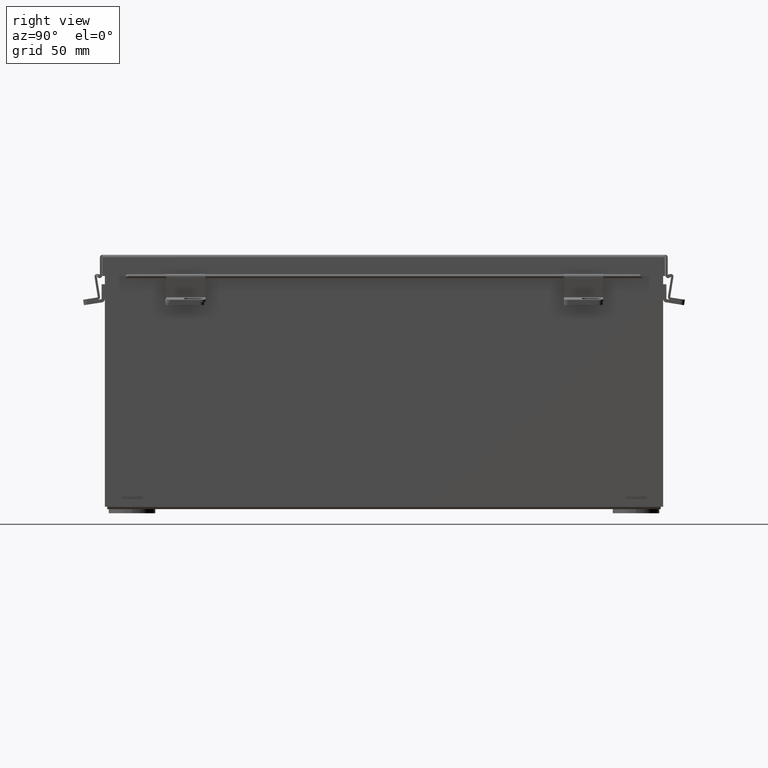
[diagram: clean part render]
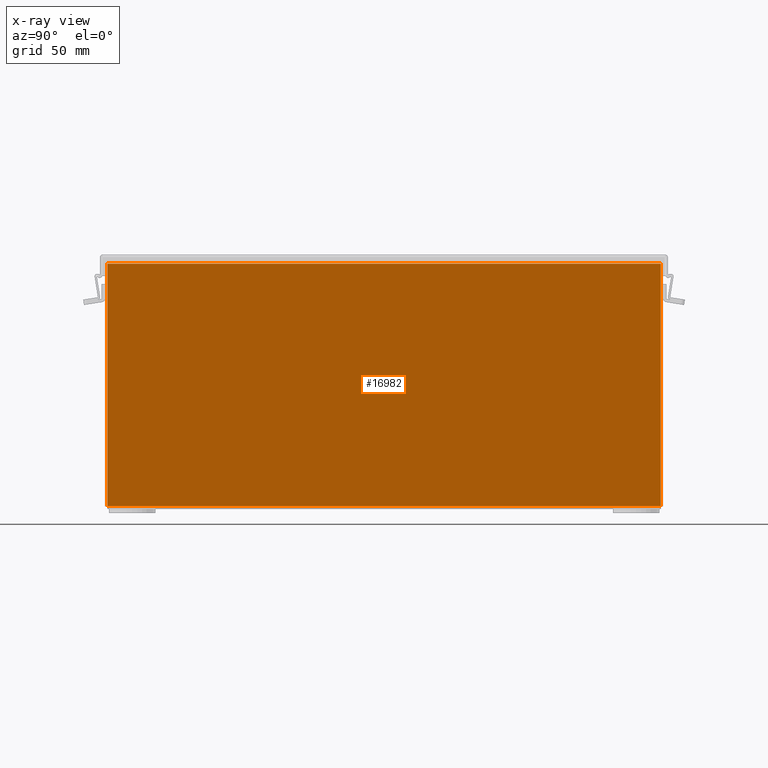
[diagram: x-ray — body ghosted, one internal face saturated and labeled with its STEP entity id]
A machine part, right view, then the same camera in x-ray: the body is ghosted and one INTERNAL B-rep face — a face not visible from any outside direction — is saturated and labeled: STEP entity #16982.
In plain terms, the highlighted planar face has unit normal (-1, 0, 0).
Its self-contained STEP definition (entity closure, byte-faithful):
#799 = LINE ( 'NONE', #16901, #12255 ) ;
#940 = ORIENTED_EDGE ( 'NONE', *, *, #8664, .F. ) ;
#1214 = VERTEX_POINT ( 'NONE', #6431 ) ;
#1230 = VERTEX_POINT ( 'NONE', #18881 ) ;
#1241 = VECTOR ( 'NONE', #15335, 39.37007874015748100 ) ;
#1297 = VECTOR ( 'NONE', #16380, 39.37007874015748100 ) ;
#1596 = PLANE ( 'NONE',  #2156 ) ;
#2156 = AXIS2_PLACEMENT_3D ( 'NONE', #14991, #6080, #16459 ) ;
#2313 = LINE ( 'NONE', #7076, #9793 ) ;
#3618 = DIRECTION ( 'NONE',  ( -0.0000000000000000000, -1.000000000000000000, -0.0000000000000000000 ) ) ;
#4725 = LINE ( 'NONE', #6424, #1241 ) ;
#5277 = EDGE_CURVE ( 'NONE', #14692, #1230, #2313, .T. ) ;
#5654 = VERTEX_POINT ( 'NONE', #9638 ) ;
#6080 = DIRECTION ( 'NONE',  ( -1.000000000000000000, 0.0000000000000000000, 3.479795166820706300E-015 ) ) ;
#6424 = CARTESIAN_POINT ( 'NONE',  ( 3.925300000000000500, -8.925300000000001800, 0.01300000000000011600 ) ) ;
#6431 = CARTESIAN_POINT ( 'NONE',  ( 3.925300000000000500, -8.925300000000001800, 0.01300000000000011600 ) ) ;
#6493 = DIRECTION ( 'NONE',  ( 3.479795166820706300E-015, -1.391918066728282600E-016, 1.000000000000000000 ) ) ;
#7035 = CARTESIAN_POINT ( 'NONE',  ( 3.925300000000000500, 8.925299999999998200, 0.01300000000000011600 ) ) ;
#7076 = CARTESIAN_POINT ( 'NONE',  ( 3.925300000000027500, 8.925299999999998200, 7.850599999999999100 ) ) ;
#8664 = EDGE_CURVE ( 'NONE', #1230, #5654, #799, .T. ) ;
#9150 = EDGE_CURVE ( 'NONE', #1214, #14692, #4725, .T. ) ;
#9638 = CARTESIAN_POINT ( 'NONE',  ( 3.925300000000027100, -8.925300000000000000, 7.837599999999999200 ) ) ;
#9793 = VECTOR ( 'NONE', #6493, 39.37007874015748100 ) ;
#12255 = VECTOR ( 'NONE', #3618, 39.37007874015748100 ) ;
#13208 = LINE ( 'NONE', #14904, #1297 ) ;
#14212 = EDGE_LOOP ( 'NONE', ( #18340, #940, #18101, #16050 ) ) ;
#14692 = VERTEX_POINT ( 'NONE', #7035 ) ;
#14904 = CARTESIAN_POINT ( 'NONE',  ( 3.925300000000000500, -8.925300000000001800, 0.0000000000000000000 ) ) ;
#14991 = CARTESIAN_POINT ( 'NONE',  ( 3.925300000000000500, 0.0000000000000000000, -1.391535071772734100E-014 ) ) ;
#15034 = FACE_OUTER_BOUND ( 'NONE', #14212, .T. ) ;
#15335 = DIRECTION ( 'NONE',  ( 0.0000000000000000000, 1.000000000000000000, 0.0000000000000000000 ) ) ;
#16050 = ORIENTED_EDGE ( 'NONE', *, *, #9150, .F. ) ;
#16380 = DIRECTION ( 'NONE',  ( -3.479795166820706300E-015, -0.0000000000000000000, -1.000000000000000000 ) ) ;
#16459 = DIRECTION ( 'NONE',  ( 3.479795166820706300E-015, 0.0000000000000000000, 1.000000000000000000 ) ) ;
#16901 = CARTESIAN_POINT ( 'NONE',  ( 3.925300000000027100, 8.925299999999996500, 7.837599999999999200 ) ) ;
#16982 = ADVANCED_FACE ( 'NONE', ( #15034 ), #1596, .T. ) ;
#17614 = EDGE_CURVE ( 'NONE', #5654, #1214, #13208, .T. ) ;
#18101 = ORIENTED_EDGE ( 'NONE', *, *, #5277, .F. ) ;
#18340 = ORIENTED_EDGE ( 'NONE', *, *, #17614, .F. ) ;
#18881 = CARTESIAN_POINT ( 'NONE',  ( 3.925300000000027500, 8.925299999999998200, 7.837599999999999200 ) ) ;